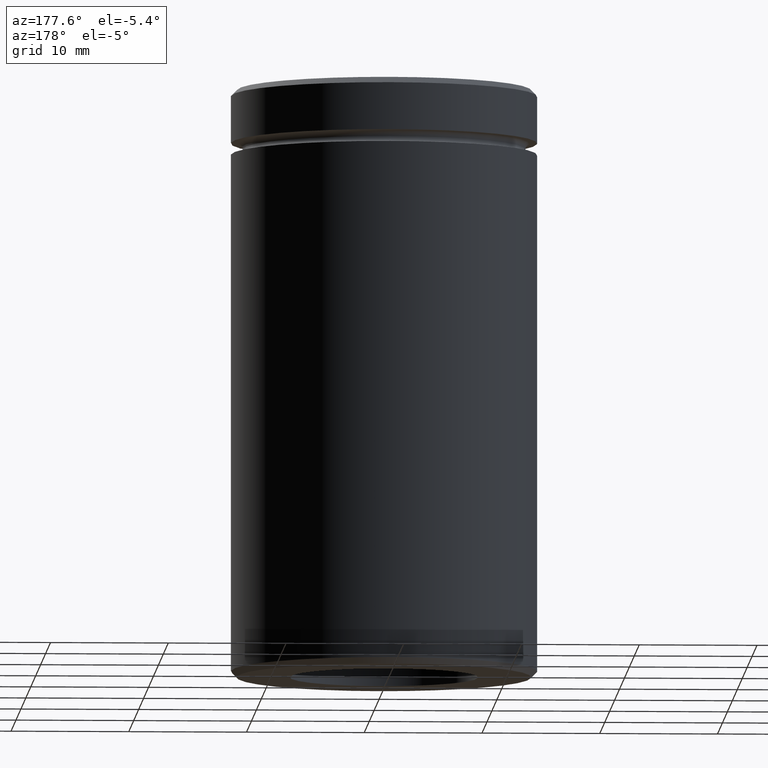
[diagram: clean part render]
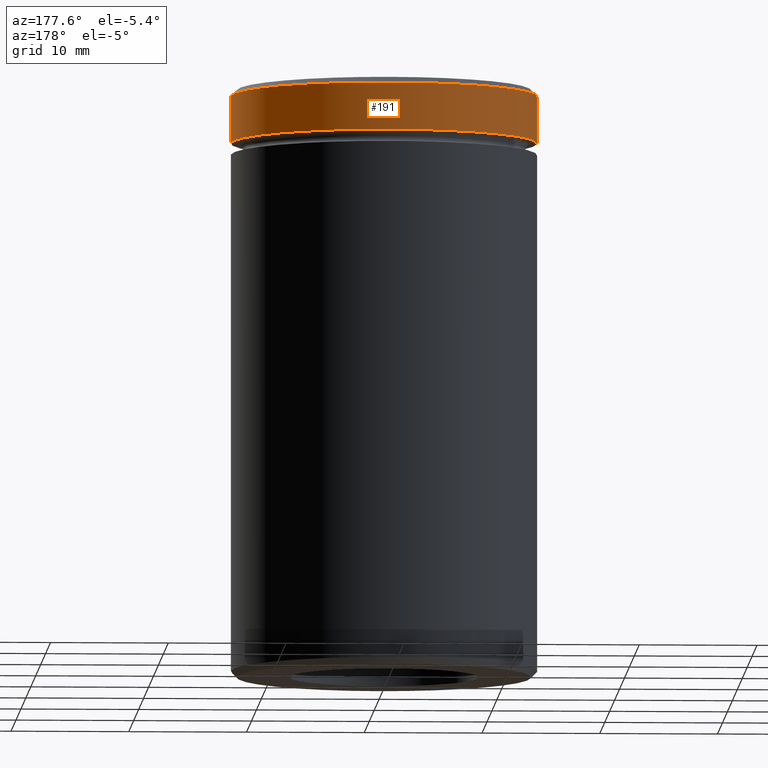
[diagram: same view with one face highlighted and labeled with its STEP entity id]
A machine part, auxiliary view. The second image highlights one B-rep face of the part: STEP entity #191.
In plain terms, the highlighted cylindrical surface (partial cylindrical patch) has radius 13 mm, axis along (-0, -0, 1).
Its self-contained STEP definition (entity closure, byte-faithful):
#7 = ORIENTED_EDGE ( 'NONE', *, *, #301, .T. ) ;
#32 = VECTOR ( 'NONE', #50, 1000.000000000000000 ) ;
#44 = CARTESIAN_POINT ( 'NONE',  ( 13.00000000000000000, 0.000000000000000000, -4.500000000000000888 ) ) ;
#50 = DIRECTION ( 'NONE',  ( -0.000000000000000000, -0.000000000000000000, 1.000000000000000000 ) ) ;
#57 = VERTEX_POINT ( 'NONE', #78 ) ;
#78 = CARTESIAN_POINT ( 'NONE',  ( 13.00000000000000000, 0.000000000000000000, -0.5000000000000004441 ) ) ;
#82 = CARTESIAN_POINT ( 'NONE',  ( 0.000000000000000000, 0.000000000000000000, -4.500000000000000888 ) ) ;
#95 = LINE ( 'NONE', #338, #138 ) ;
#101 = ORIENTED_EDGE ( 'NONE', *, *, #463, .F. ) ;
#102 = DIRECTION ( 'NONE',  ( 0.000000000000000000, 0.000000000000000000, -1.000000000000000000 ) ) ;
#123 = DIRECTION ( 'NONE',  ( -0.000000000000000000, -0.000000000000000000, 1.000000000000000000 ) ) ;
#138 = VECTOR ( 'NONE', #291, 1000.000000000000000 ) ;
#143 = CARTESIAN_POINT ( 'NONE',  ( -13.00000000000000000, 1.592040838891559095E-15, -0.5000000000000004441 ) ) ;
#172 = CYLINDRICAL_SURFACE ( 'NONE', #306, 13.00000000000000000 ) ;
#191 = ADVANCED_FACE ( 'NONE', ( #320 ), #172, .T. ) ;
#200 = CIRCLE ( 'NONE', #500, 13.00000000000000000 ) ;
#211 = AXIS2_PLACEMENT_3D ( 'NONE', #82, #402, #552 ) ;
#252 = DIRECTION ( 'NONE',  ( 1.000000000000000000, 0.000000000000000000, 0.000000000000000000 ) ) ;
#279 = VERTEX_POINT ( 'NONE', #44 ) ;
#280 = VERTEX_POINT ( 'NONE', #425 ) ;
#291 = DIRECTION ( 'NONE',  ( -0.000000000000000000, -0.000000000000000000, 1.000000000000000000 ) ) ;
#301 = EDGE_CURVE ( 'NONE', #508, #57, #200, .T. ) ;
#303 = CARTESIAN_POINT ( 'NONE',  ( 13.00000000000000000, 0.000000000000000000, 0.000000000000000000 ) ) ;
#306 = AXIS2_PLACEMENT_3D ( 'NONE', #502, #123, #252 ) ;
#320 = FACE_OUTER_BOUND ( 'NONE', #558, .T. ) ;
#322 = ORIENTED_EDGE ( 'NONE', *, *, #337, .T. ) ;
#337 = EDGE_CURVE ( 'NONE', #279, #280, #522, .T. ) ;
#338 = CARTESIAN_POINT ( 'NONE',  ( -13.00000000000000000, 1.592040838891559095E-15, 0.000000000000000000 ) ) ;
#402 = DIRECTION ( 'NONE',  ( -0.000000000000000000, -0.000000000000000000, 1.000000000000000000 ) ) ;
#425 = CARTESIAN_POINT ( 'NONE',  ( -13.00000000000000000, 1.592040838891559095E-15, -4.500000000000000888 ) ) ;
#436 = DIRECTION ( 'NONE',  ( 1.000000000000000000, 0.000000000000000000, 0.000000000000000000 ) ) ;
#463 = EDGE_CURVE ( 'NONE', #279, #57, #524, .T. ) ;
#482 = CARTESIAN_POINT ( 'NONE',  ( 0.000000000000000000, 0.000000000000000000, -0.5000000000000004441 ) ) ;
#500 = AXIS2_PLACEMENT_3D ( 'NONE', #482, #102, #436 ) ;
#502 = CARTESIAN_POINT ( 'NONE',  ( 0.000000000000000000, 0.000000000000000000, 0.000000000000000000 ) ) ;
#508 = VERTEX_POINT ( 'NONE', #143 ) ;
#522 = CIRCLE ( 'NONE', #211, 13.00000000000000000 ) ;
#524 = LINE ( 'NONE', #303, #32 ) ;
#526 = EDGE_CURVE ( 'NONE', #280, #508, #95, .T. ) ;
#552 = DIRECTION ( 'NONE',  ( 1.000000000000000000, 0.000000000000000000, 0.000000000000000000 ) ) ;
#555 = ORIENTED_EDGE ( 'NONE', *, *, #526, .T. ) ;
#558 = EDGE_LOOP ( 'NONE', ( #322, #555, #7, #101 ) ) ;